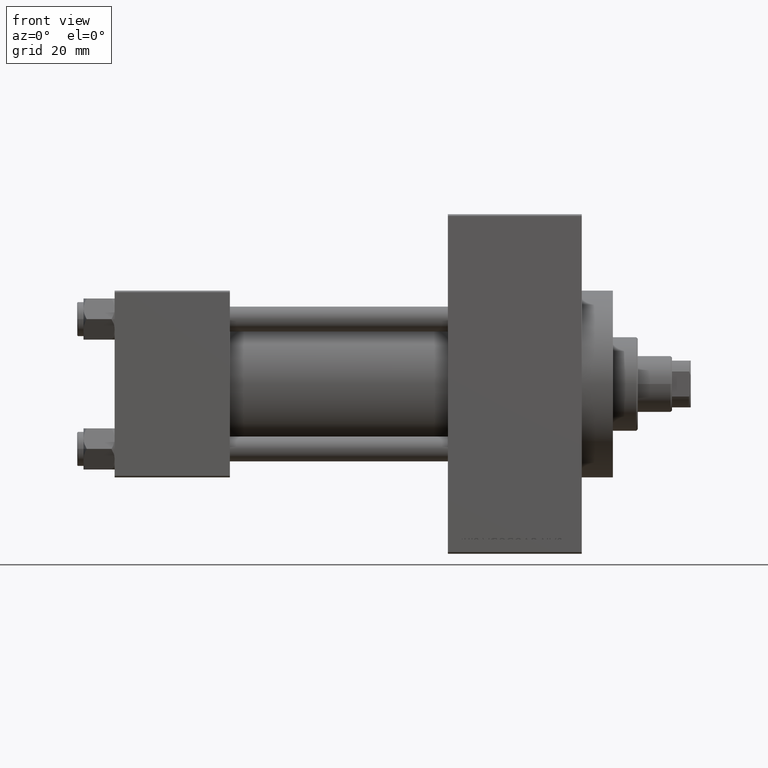
[diagram: clean part render]
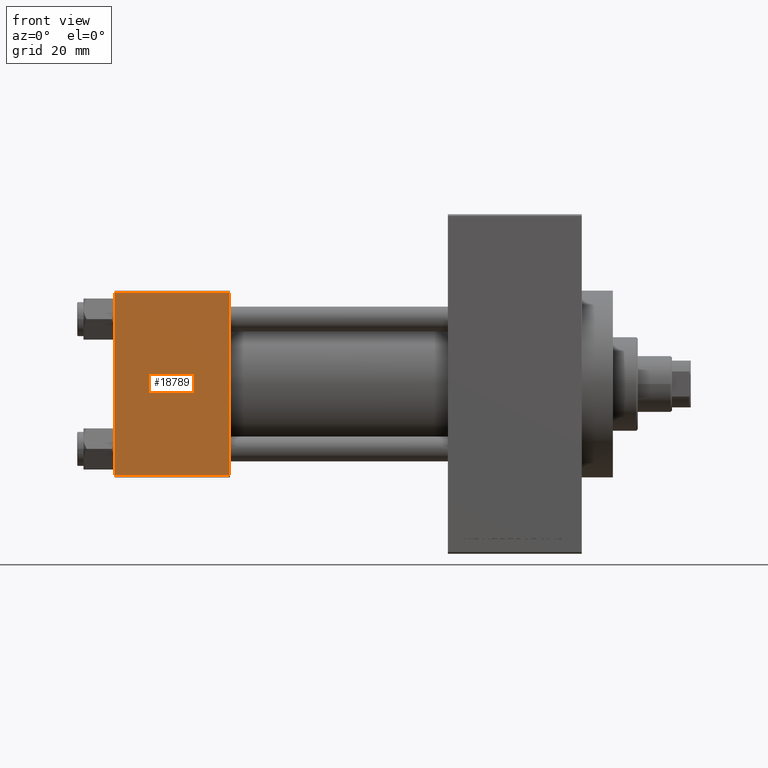
[diagram: same view with one face highlighted and labeled with its STEP entity id]
A machine part, front view. The second image highlights one B-rep face of the part: STEP entity #18789.
In plain terms, the highlighted planar face has unit normal (0, 1, 0).
Its self-contained STEP definition (entity closure, byte-faithful):
#2580 = CARTESIAN_POINT ( 'NONE',  ( 37.00000000000000000, -30.00000000000000000, -29.50000000000001776 ) ) ;
#3251 = CARTESIAN_POINT ( 'NONE',  ( 37.00000000000000000, -30.00000000000000000, -29.50000000000001776 ) ) ;
#3552 = DIRECTION ( 'NONE',  ( 1.000000000000000000, 0.000000000000000000, 0.000000000000000000 ) ) ;
#3719 = VERTEX_POINT ( 'NONE', #44992 ) ;
#3970 = FACE_OUTER_BOUND ( 'NONE', #41523, .T. ) ;
#5768 = CARTESIAN_POINT ( 'NONE',  ( 0.000000000000000000, -30.00000000000000000, -29.50000000000001776 ) ) ;
#5830 = VERTEX_POINT ( 'NONE', #5768 ) ;
#6287 = ORIENTED_EDGE ( 'NONE', *, *, #47381, .F. ) ;
#9556 = EDGE_CURVE ( 'NONE', #5830, #9778, #14279, .T. ) ;
#9585 = VECTOR ( 'NONE', #37067, 1000.000000000000000 ) ;
#9778 = VERTEX_POINT ( 'NONE', #3251 ) ;
#11471 = PLANE ( 'NONE',  #31569 ) ;
#14279 = LINE ( 'NONE', #2580, #36086 ) ;
#18678 = ORIENTED_EDGE ( 'NONE', *, *, #18782, .T. ) ;
#18782 = EDGE_CURVE ( 'NONE', #42018, #3719, #41874, .T. ) ;
#18789 = ADVANCED_FACE ( 'NONE', ( #3970 ), #11471, .F. ) ;
#18934 = DIRECTION ( 'NONE',  ( -1.000000000000000000, 0.000000000000000000, 0.000000000000000000 ) ) ;
#20342 = ORIENTED_EDGE ( 'NONE', *, *, #9556, .T. ) ;
#20455 = VECTOR ( 'NONE', #40257, 1000.000000000000000 ) ;
#23851 = EDGE_CURVE ( 'NONE', #3719, #5830, #40014, .T. ) ;
#29283 = CARTESIAN_POINT ( 'NONE',  ( 0.000000000000000000, -30.00000000000000000, 29.99999999999999289 ) ) ;
#30067 = LINE ( 'NONE', #41541, #9585 ) ;
#31569 = AXIS2_PLACEMENT_3D ( 'NONE', #40907, #45120, #45863 ) ;
#32510 = CARTESIAN_POINT ( 'NONE',  ( 37.00000000000000000, -30.00000000000000000, 29.49999999999999289 ) ) ;
#36086 = VECTOR ( 'NONE', #3552, 1000.000000000000000 ) ;
#37067 = DIRECTION ( 'NONE',  ( 0.000000000000000000, 0.000000000000000000, -1.000000000000000000 ) ) ;
#39033 = ORIENTED_EDGE ( 'NONE', *, *, #23851, .T. ) ;
#40014 = LINE ( 'NONE', #29283, #20455 ) ;
#40257 = DIRECTION ( 'NONE',  ( 0.000000000000000000, 0.000000000000000000, -1.000000000000000000 ) ) ;
#40907 = CARTESIAN_POINT ( 'NONE',  ( 37.00000000000000000, -30.00000000000000000, 29.99999999999999289 ) ) ;
#41523 = EDGE_LOOP ( 'NONE', ( #39033, #20342, #6287, #18678 ) ) ;
#41541 = CARTESIAN_POINT ( 'NONE',  ( 37.00000000000000000, -30.00000000000000000, 29.99999999999999289 ) ) ;
#41638 = CARTESIAN_POINT ( 'NONE',  ( 37.00000000000000000, -30.00000000000000000, 29.49999999999999289 ) ) ;
#41874 = LINE ( 'NONE', #41638, #46689 ) ;
#42018 = VERTEX_POINT ( 'NONE', #32510 ) ;
#44992 = CARTESIAN_POINT ( 'NONE',  ( 0.000000000000000000, -30.00000000000000000, 29.49999999999999289 ) ) ;
#45120 = DIRECTION ( 'NONE',  ( -0.000000000000000000, 1.000000000000000000, 0.000000000000000000 ) ) ;
#45863 = DIRECTION ( 'NONE',  ( 0.000000000000000000, -0.000000000000000000, 1.000000000000000000 ) ) ;
#46689 = VECTOR ( 'NONE', #18934, 1000.000000000000000 ) ;
#47381 = EDGE_CURVE ( 'NONE', #42018, #9778, #30067, .T. ) ;